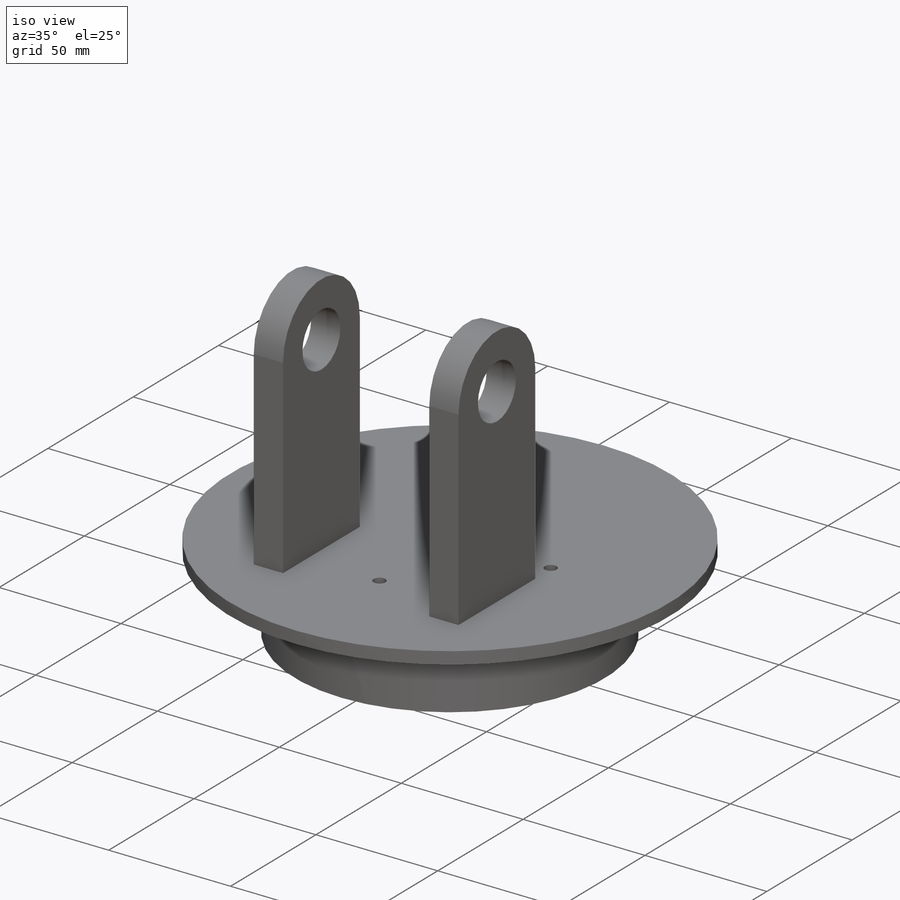
[diagram: iso view]
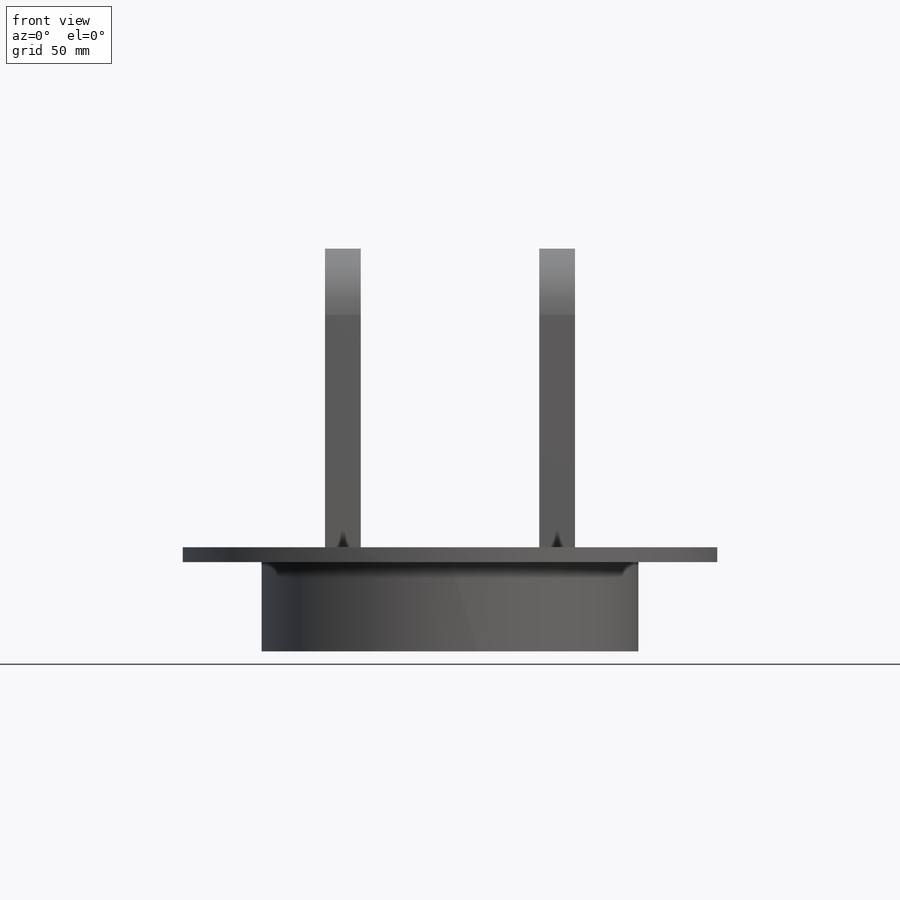
[diagram: front view]
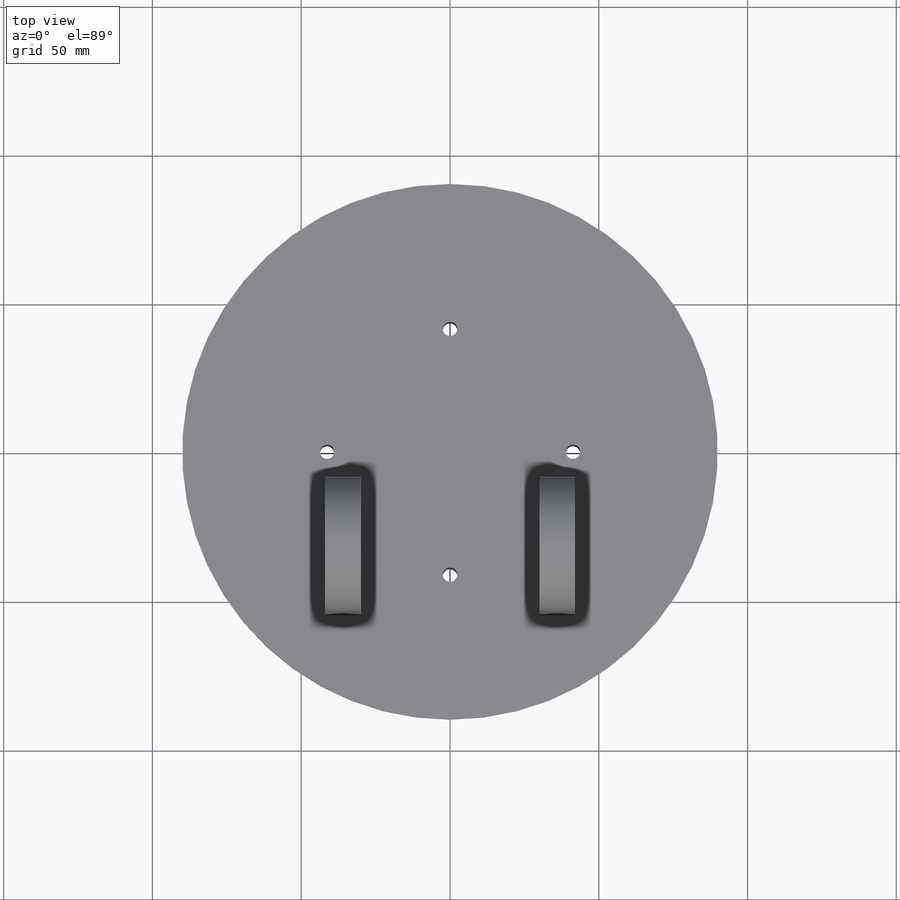
[diagram: top view]
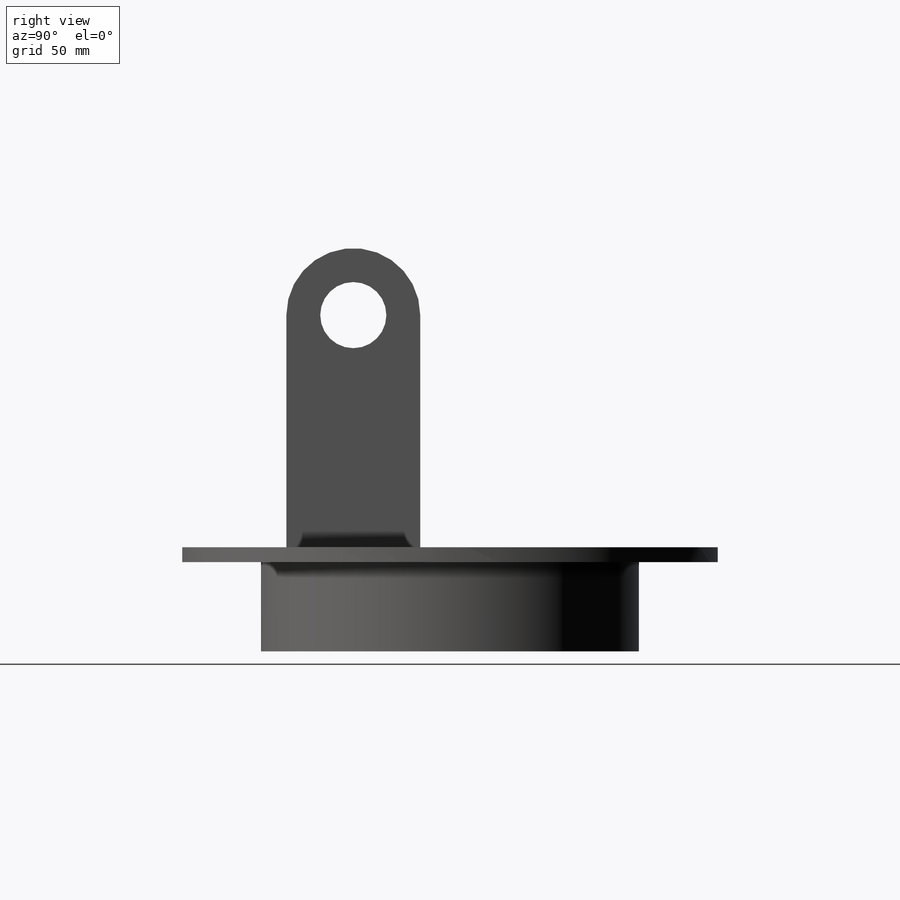
[diagram: right view]
SOLIDWORKS PART (.sldprt)
format: sldprt  version: not decoded by parser v0  size: 232,960 bytes
history: native  units: mm
features: sketch x9, extrude x5, plane x3, cut_extrude x3, material x1 (+8 scaffold rows collapsed)
feature tree (29):
  scaffold x8  (default folders/planes/origin — collapsed)
  material  "Material <not specified>"
  plane  "前基準面"
  plane  "上基準面"
  plane  "右基準面"
  sketch  "草圖1"  dims[D1=180.0mm]
  extrude  "填料-伸長2"  Depth=5mm
  sketch  "草圖2"  dims[D1=127.0mm]
  extrude  "填料-伸長3"  Depth=30mm
  sketch  "草圖3"  dims[c1.D1=4.83mm c1.D2=4.83mm c1.D3=4.83mm c2.D1=4.83mm c2.D2=8.43mm c2.D3=4.83mm c2.D4=4.83mm c3.D2=29.21mm c3.D3=29.21mm c4.D2=41.31mm c4.D4=41.31mm c4.D5=2.0]
  cut_extrude  "除料-伸長1"  [1 undecoded]
  sketch  "草圖4"  dims[c1.D1=39.0mm c1.D2=6.0mm c1.D3=30.0mm c1.D4=10.0mm c2.D3=30.0mm]
  extrude  "填料-伸長4"  Depth=78mm
  sketch  "草圖5"
  extrude  "填料-伸長5"  [1 undecoded]
  sketch  "草圖7"
  extrude  "填料-伸長6"  [1 undecoded]
  sketch  "草圖8"  dims[D1=22.225mm]
  cut_extrude  "除料-伸長3"  [1 undecoded]
  sketch  "Sketch1"  dims[D1=~31.435076mm]
  sketch  "Sketch2"  dims[D1=40.0mm]
  cut_extrude  "Cut-Extrude1"  [1 undecoded]
decode coverage: 10 of 17 modeling features carry decoded parameters
note: ~ marks probable driven/reference dimensions
note: 5 parameter values undecoded
summary: no parameter record found for 5 features
note: suppression state not decoded; provenance and decode notes live in map.json
